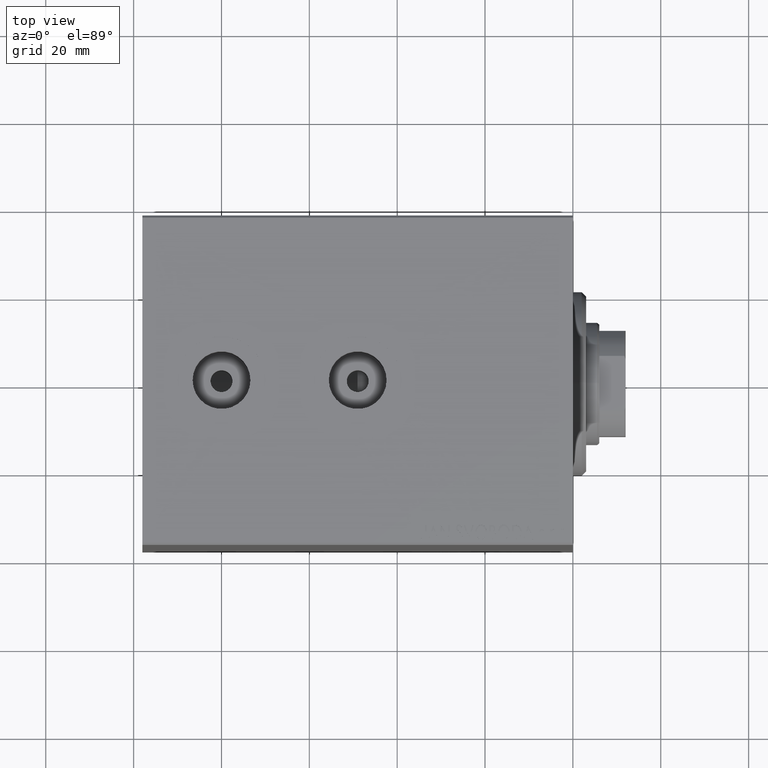
[diagram: clean part render]
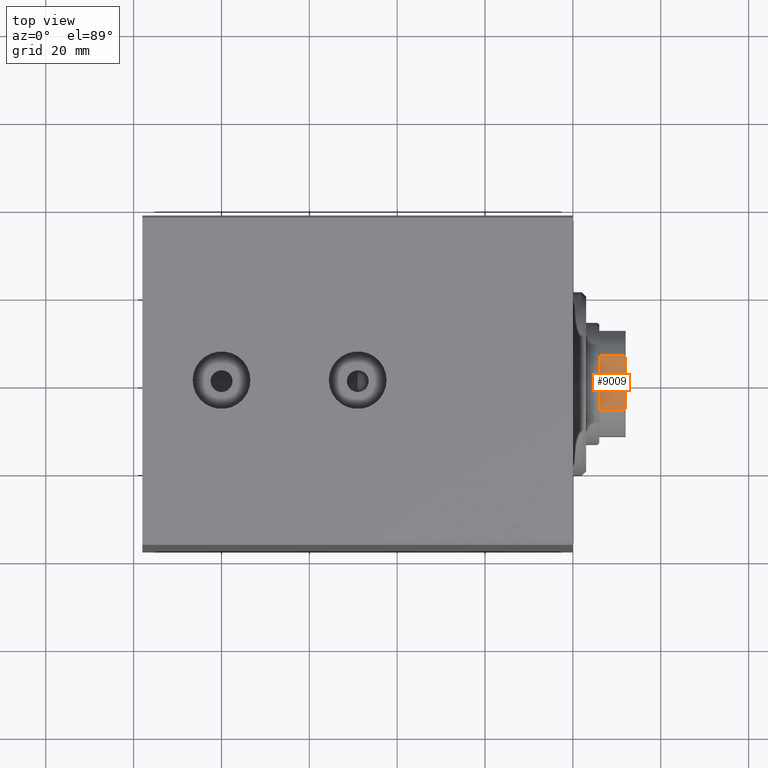
[diagram: same view with one face highlighted and labeled with its STEP entity id]
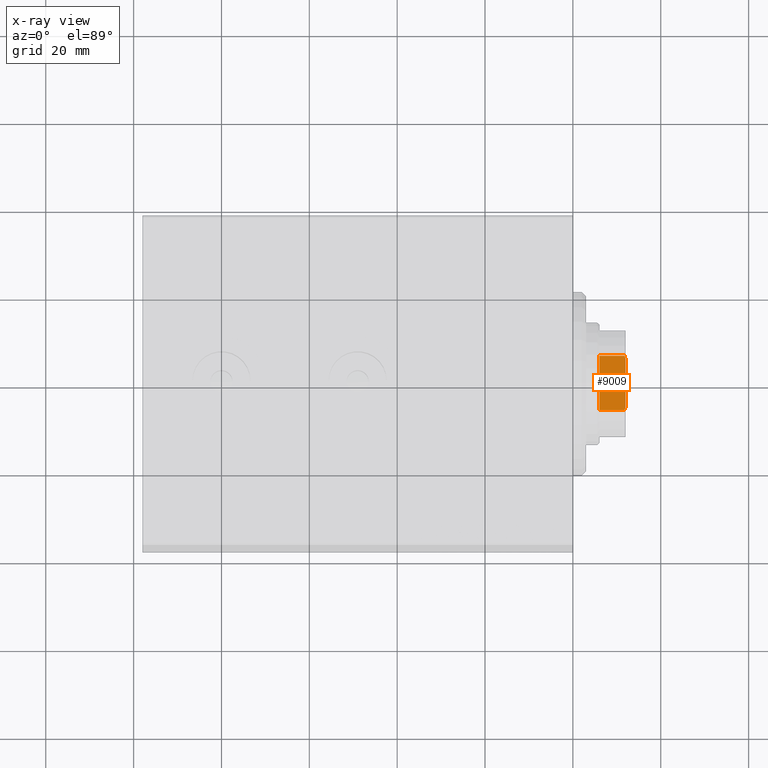
[diagram: x-ray of the same camera — body ghosted, the highlighted face saturated]
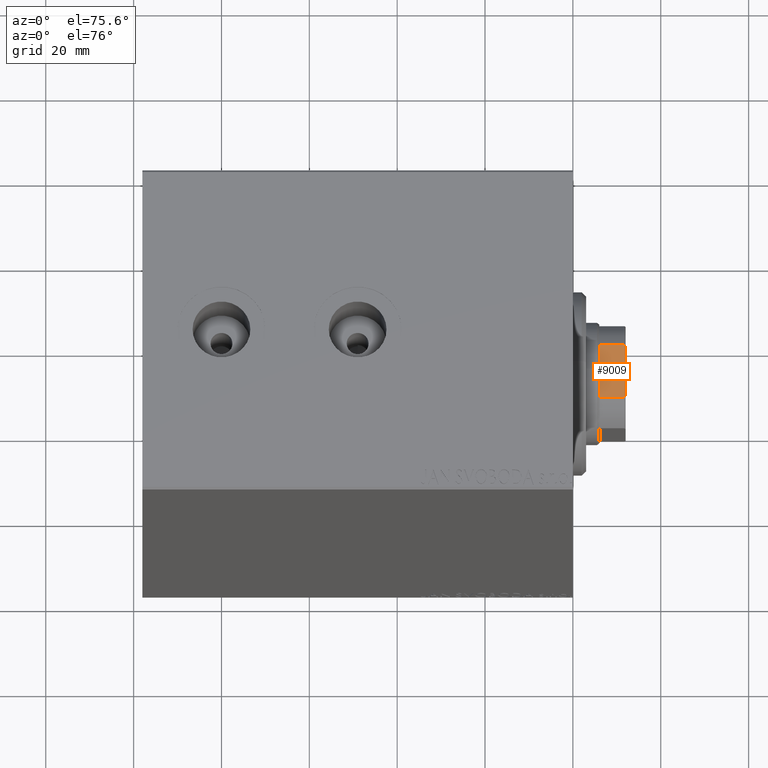
[diagram: same view with one face highlighted and labeled with its STEP entity id]
A machine part, top view. The second image highlights one B-rep face of the part: STEP entity #9009.
The next image is the same camera in x-ray: the body ghosted, the highlighted face saturated — about 0% of this face is hidden behind the body in this view.
A second angle (auxiliary view) of the same face is appended — the face is thin or edge-on in the first view.
In plain terms, the highlighted planar face has unit normal (0, -0, -1).
Its self-contained STEP definition (entity closure, byte-faithful):
#421 = CARTESIAN_POINT ( 'NONE',  ( -12.00000000000000178, 12.00000000000000000, 90.00000000000000000 ) ) ;
#444 = EDGE_CURVE ( 'NONE', #14893, #4443, #11430, .T. ) ;
#1906 = VECTOR ( 'NONE', #8061, 1000.000000000000000 ) ;
#2446 = ORIENTED_EDGE ( 'NONE', *, *, #5051, .T. ) ;
#3043 = EDGE_CURVE ( 'NONE', #31819, #28260, #28426, .T. ) ;
#3706 = CARTESIAN_POINT ( 'NONE',  ( -11.99999999999999822, -6.184658438426491323, 95.70000000000001705 ) ) ;
#3928 = VECTOR ( 'NONE', #21985, 1000.000000000000000 ) ;
#4443 = VERTEX_POINT ( 'NONE', #5037 ) ;
#5037 = CARTESIAN_POINT ( 'NONE',  ( -11.99999999999999822, 6.184658438426493099, 95.69999999999998863 ) ) ;
#5051 = EDGE_CURVE ( 'NONE', #28260, #37823, #29274, .T. ) ;
#6761 = B_SPLINE_CURVE_WITH_KNOTS ( 'NONE', 3,
 ( #3706, #35319, #8042, #35775 ),
 .UNSPECIFIED., .F., .F.,
 ( 4, 4 ),
 ( 0.000000000000000000, 0.0007483334419305754737 ),
 .UNSPECIFIED. ) ;
#8042 = CARTESIAN_POINT ( 'NONE',  ( -12.00000000000000000, -5.729389212963469369, 95.90405820415742255 ) ) ;
#8045 = FACE_OUTER_BOUND ( 'NONE', #28210, .T. ) ;
#8061 = DIRECTION ( 'NONE',  ( -0.000000000000000000, -0.000000000000000000, 1.000000000000000000 ) ) ;
#8133 = ORIENTED_EDGE ( 'NONE', *, *, #3043, .T. ) ;
#8508 = CARTESIAN_POINT ( 'NONE',  ( -11.99999999999999822, 6.184658438426493099, -0.001000000000001000089 ) ) ;
#9009 = ADVANCED_FACE ( 'NONE', ( #8045 ), #18037, .F. ) ;
#9812 = EDGE_CURVE ( 'NONE', #31819, #4443, #18971, .T. ) ;
#11430 = B_SPLINE_CURVE_WITH_KNOTS ( 'NONE', 3,
 ( #41057, #27425, #22884, #29951 ),
 .UNSPECIFIED., .F., .F.,
 ( 4, 4 ),
 ( 0.000000000000000000, 0.0007483334419306175407 ),
 .UNSPECIFIED. ) ;
#12231 = CARTESIAN_POINT ( 'NONE',  ( -12.00000000000000178, 12.00000000000000000, 96.00000000000000000 ) ) ;
#14780 = ORIENTED_EDGE ( 'NONE', *, *, #18929, .T. ) ;
#14893 = VERTEX_POINT ( 'NONE', #17792 ) ;
#17792 = CARTESIAN_POINT ( 'NONE',  ( -12.00000000000000000, 5.499090833947022361, 96.00000000000000000 ) ) ;
#18037 = PLANE ( 'NONE',  #25103 ) ;
#18059 = VECTOR ( 'NONE', #36781, 1000.000000000000000 ) ;
#18929 = EDGE_CURVE ( 'NONE', #37823, #30300, #6761, .T. ) ;
#18962 = DIRECTION ( 'NONE',  ( -1.445602896647339163E-16, 1.000000000000000000, 0.000000000000000000 ) ) ;
#18971 = LINE ( 'NONE', #8508, #1906 ) ;
#20437 = EDGE_CURVE ( 'NONE', #14893, #30300, #39746, .T. ) ;
#21985 = DIRECTION ( 'NONE',  ( -0.000000000000000000, -0.000000000000000000, 1.000000000000000000 ) ) ;
#22884 = CARTESIAN_POINT ( 'NONE',  ( -12.00000000000000178, 5.957846001622717935, 95.80390795934953019 ) ) ;
#25103 = AXIS2_PLACEMENT_3D ( 'NONE', #42848, #42158, #18962 ) ;
#26593 = CARTESIAN_POINT ( 'NONE',  ( -11.99999999999999822, 6.184658438426492211, 89.99999999999998579 ) ) ;
#27425 = CARTESIAN_POINT ( 'NONE',  ( -12.00000000000000178, 5.729389212963450717, 95.90405820415740834 ) ) ;
#27841 = VECTOR ( 'NONE', #37773, 1000.000000000000000 ) ;
#28210 = EDGE_LOOP ( 'NONE', ( #2446, #14780, #38597, #38365, #29653, #8133 ) ) ;
#28256 = CARTESIAN_POINT ( 'NONE',  ( -11.99999999999999822, -6.184658438426491323, 89.99999999999998579 ) ) ;
#28260 = VERTEX_POINT ( 'NONE', #28256 ) ;
#28426 = LINE ( 'NONE', #421, #27841 ) ;
#29274 = LINE ( 'NONE', #42685, #3928 ) ;
#29653 = ORIENTED_EDGE ( 'NONE', *, *, #9812, .F. ) ;
#29951 = CARTESIAN_POINT ( 'NONE',  ( -11.99999999999999822, 6.184658438426493099, 95.69999999999998863 ) ) ;
#30300 = VERTEX_POINT ( 'NONE', #31376 ) ;
#31376 = CARTESIAN_POINT ( 'NONE',  ( -12.00000000000000000, -5.499090833947054335, 96.00000000000000000 ) ) ;
#31819 = VERTEX_POINT ( 'NONE', #26593 ) ;
#35319 = CARTESIAN_POINT ( 'NONE',  ( -11.99999999999999822, -5.957846001622726817, 95.80390795934954440 ) ) ;
#35775 = CARTESIAN_POINT ( 'NONE',  ( -12.00000000000000000, -5.499090833947054335, 96.00000000000000000 ) ) ;
#36781 = DIRECTION ( 'NONE',  ( 1.445602896647339163E-16, -1.000000000000000000, 0.000000000000000000 ) ) ;
#37773 = DIRECTION ( 'NONE',  ( 1.445602896647339163E-16, -1.000000000000000000, 0.000000000000000000 ) ) ;
#37823 = VERTEX_POINT ( 'NONE', #41331 ) ;
#38365 = ORIENTED_EDGE ( 'NONE', *, *, #444, .T. ) ;
#38597 = ORIENTED_EDGE ( 'NONE', *, *, #20437, .F. ) ;
#39746 = LINE ( 'NONE', #12231, #18059 ) ;
#41057 = CARTESIAN_POINT ( 'NONE',  ( -12.00000000000000000, 5.499090833947022361, 96.00000000000000000 ) ) ;
#41331 = CARTESIAN_POINT ( 'NONE',  ( -11.99999999999999822, -6.184658438426491323, 95.70000000000001705 ) ) ;
#42158 = DIRECTION ( 'NONE',  ( 1.000000000000000000, 1.445602896647339163E-16, -0.000000000000000000 ) ) ;
#42685 = CARTESIAN_POINT ( 'NONE',  ( -11.99999999999999822, -6.184658438426491323, -0.001000000000001000089 ) ) ;
#42848 = CARTESIAN_POINT ( 'NONE',  ( -12.00000000000000178, 12.00000000000000000, 96.00000000000000000 ) ) ;